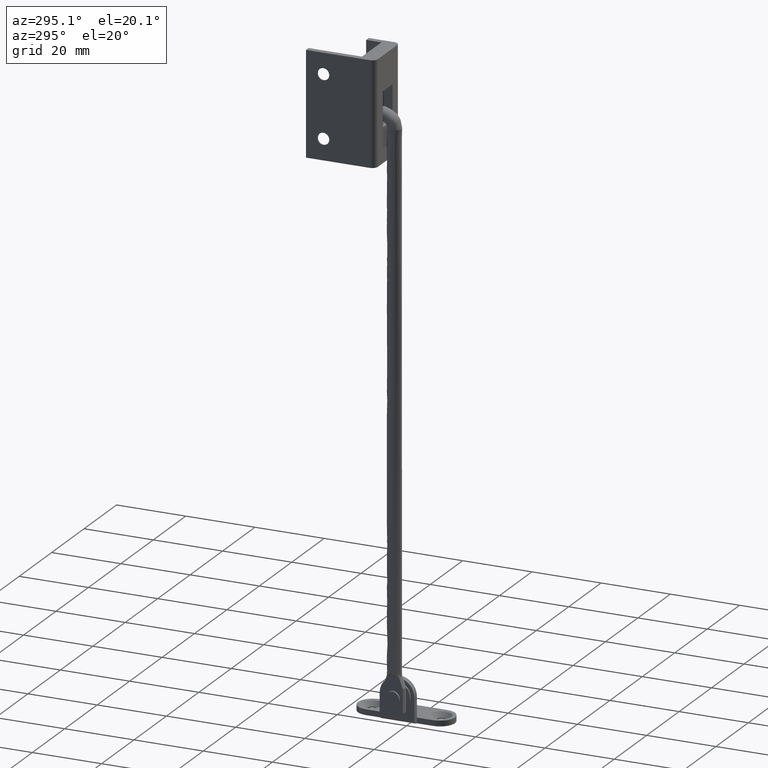
[diagram: clean part render]
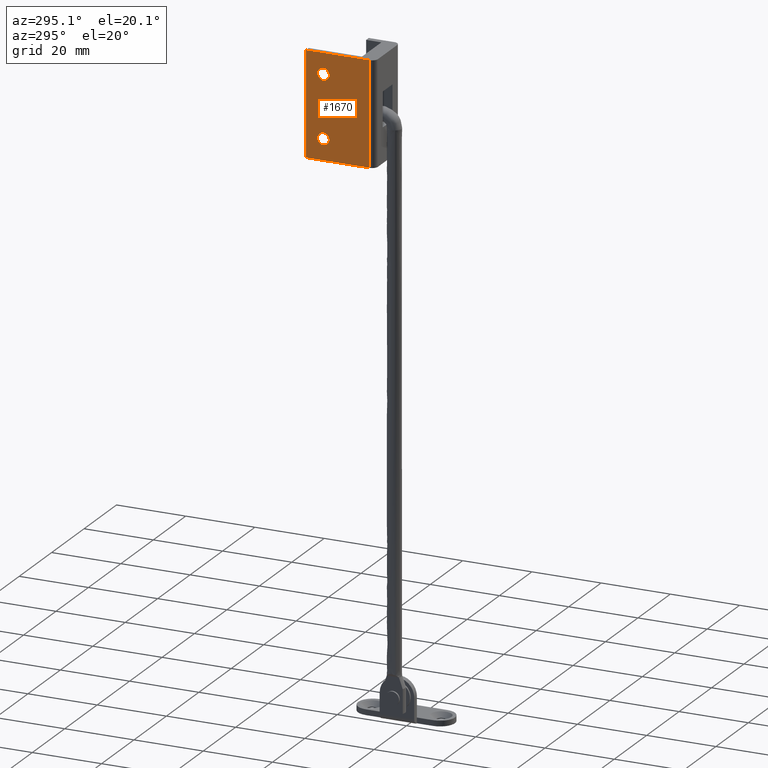
[diagram: same view with one face highlighted and labeled with its STEP entity id]
A machine part, auxiliary view. The second image highlights one B-rep face of the part: STEP entity #1670.
In plain terms, the highlighted face is a freeform B-spline surface patch.
Its self-contained STEP definition (entity closure, byte-faithful):
#732=CARTESIAN_POINT('',(-15.0,18.688116194754219,163.130795199455010));
#733=VERTEX_POINT('',#732);
#739=CARTESIAN_POINT('',(-15.0,17.0,161.230137000000010));
#740=VERTEX_POINT('',#739);
#741=CARTESIAN_POINT('',(-15.000000000000002,18.688116194754208,163.130795199455060));
#742=CARTESIAN_POINT('',(-14.999999999999996,18.699999999999999,163.030818003952530));
#743=CARTESIAN_POINT('',(-15.0,18.699999999999999,162.930137000000000));
#744=CARTESIAN_POINT('',(-14.999999999999995,18.699999999999999,161.230137000000010));
#745=CARTESIAN_POINT('',(-15.0,17.0,161.230137000000010));
#753=(BOUNDED_CURVE()B_SPLINE_CURVE(2,(#741,#742,#743,#744,#745),.UNSPECIFIED.,.F.,.U.)B_SPLINE_CURVE_WITH_KNOTS((3,2,3),(0.229562473407815,0.250000000000000,0.500000000000000),.UNSPECIFIED.)CURVE()GEOMETRIC_REPRESENTATION_ITEM()RATIONAL_B_SPLINE_CURVE((0.956026753976536,0.976055948207318,1.0,0.707106781186548,1.0))REPRESENTATION_ITEM(''));
#754=EDGE_CURVE('',#733,#740,#753,.T.);
#756=CARTESIAN_POINT('',(-15.0,15.303170842789360,162.826354481049010));
#757=VERTEX_POINT('',#756);
#758=CARTESIAN_POINT('',(-15.0,17.0,161.230137000000010));
#759=CARTESIAN_POINT('',(-15.0,15.400799689549558,161.230136999999930));
#760=CARTESIAN_POINT('',(-14.999999999999996,15.303170842789354,162.826354481048980));
#768=(BOUNDED_CURVE()B_SPLINE_CURVE(2,(#758,#759,#760),.UNSPECIFIED.,.F.,.U.)B_SPLINE_CURVE_WITH_KNOTS((3,3),(0.500000000000000,0.739332961887735),.UNSPECIFIED.)CURVE()GEOMETRIC_REPRESENTATION_ITEM()RATIONAL_B_SPLINE_CURVE((1.0,0.719603993698176,0.976072040914012))REPRESENTATION_ITEM(''));
#769=EDGE_CURVE('',#740,#757,#768,.T.);
#803=CARTESIAN_POINT('',(-15.0,17.0,164.630136999999990));
#804=VERTEX_POINT('',#803);
#805=CARTESIAN_POINT('',(-14.999999999999996,15.303170842789354,162.826354481048980));
#806=CARTESIAN_POINT('',(-14.999999999999995,15.300000000000002,162.878197300645780));
#807=CARTESIAN_POINT('',(-15.0,15.300000000000001,162.930137000000000));
#808=CARTESIAN_POINT('',(-14.999999999999995,15.300000000000004,164.630137000000080));
#809=CARTESIAN_POINT('',(-15.0,17.0,164.630136999999990));
#817=(BOUNDED_CURVE()B_SPLINE_CURVE(2,(#805,#806,#807,#808,#809),.UNSPECIFIED.,.F.,.U.)B_SPLINE_CURVE_WITH_KNOTS((3,2,3),(0.739332961887736,0.750000000000000,1.0),.UNSPECIFIED.)CURVE()GEOMETRIC_REPRESENTATION_ITEM()RATIONAL_B_SPLINE_CURVE((0.976072040914014,0.987502787488372,1.0,0.707106781186548,1.0))REPRESENTATION_ITEM(''));
#818=EDGE_CURVE('',#757,#804,#817,.T.);
#820=CARTESIAN_POINT('',(-15.0,17.0,164.630136999999990));
#821=CARTESIAN_POINT('',(-15.0,18.509896693147180,164.630137000000050));
#822=CARTESIAN_POINT('',(-15.000000000000002,18.688116194754208,163.130795199455060));
#830=(BOUNDED_CURVE()B_SPLINE_CURVE(2,(#820,#821,#822),.UNSPECIFIED.,.F.,.U.)B_SPLINE_CURVE_WITH_KNOTS((3,3),(0.0,0.229562473407815),.UNSPECIFIED.)CURVE()GEOMETRIC_REPRESENTATION_ITEM()RATIONAL_B_SPLINE_CURVE((1.0,0.731050832979230,0.956026753976536))REPRESENTATION_ITEM(''));
#831=EDGE_CURVE('',#804,#733,#830,.T.);
#1076=CARTESIAN_POINT('',(-15.0,18.688116194754219,181.130795199455010));
#1077=VERTEX_POINT('',#1076);
#1083=CARTESIAN_POINT('',(-15.0,17.0,179.230137000000010));
#1084=VERTEX_POINT('',#1083);
#1085=CARTESIAN_POINT('',(-14.999999999999996,18.688116194754215,181.130795199455010));
#1086=CARTESIAN_POINT('',(-14.999999999999996,18.699999999999999,181.030818003952500));
#1087=CARTESIAN_POINT('',(-15.0,18.699999999999999,180.930137000000000));
#1088=CARTESIAN_POINT('',(-14.999999999999995,18.699999999999999,179.230136999999960));
#1089=CARTESIAN_POINT('',(-15.0,17.0,179.230137000000010));
#1097=(BOUNDED_CURVE()B_SPLINE_CURVE(2,(#1085,#1086,#1087,#1088,#1089),.UNSPECIFIED.,.F.,.U.)B_SPLINE_CURVE_WITH_KNOTS((3,2,3),(0.229562473407813,0.250000000000000,0.500000000000000),.UNSPECIFIED.)CURVE()GEOMETRIC_REPRESENTATION_ITEM()RATIONAL_B_SPLINE_CURVE((0.956026753976531,0.976055948207315,1.0,0.707106781186548,1.0))REPRESENTATION_ITEM(''));
#1098=EDGE_CURVE('',#1077,#1084,#1097,.T.);
#1100=CARTESIAN_POINT('',(-15.0,15.303170842789360,180.826354481049010));
#1101=VERTEX_POINT('',#1100);
#1102=CARTESIAN_POINT('',(-15.0,17.0,179.230137000000010));
#1103=CARTESIAN_POINT('',(-15.000000000000002,15.400799689549585,179.230137000000010));
#1104=CARTESIAN_POINT('',(-15.0,15.303170842789360,180.826354481048950));
#1112=(BOUNDED_CURVE()B_SPLINE_CURVE(2,(#1102,#1103,#1104),.UNSPECIFIED.,.F.,.U.)B_SPLINE_CURVE_WITH_KNOTS((3,3),(0.500000000000000,0.739332961887733),.UNSPECIFIED.)CURVE()GEOMETRIC_REPRESENTATION_ITEM()RATIONAL_B_SPLINE_CURVE((1.0,0.719603993698179,0.976072040914007))REPRESENTATION_ITEM(''));
#1113=EDGE_CURVE('',#1084,#1101,#1112,.T.);
#1147=CARTESIAN_POINT('',(-15.0,17.0,182.630136999999990));
#1148=VERTEX_POINT('',#1147);
#1149=CARTESIAN_POINT('',(-14.999999999999996,15.303170842789356,180.826354481048950));
#1150=CARTESIAN_POINT('',(-14.999999999999998,15.299999999999995,180.878197300645780));
#1151=CARTESIAN_POINT('',(-15.0,15.300000000000001,180.930137000000000));
#1152=CARTESIAN_POINT('',(-14.999999999999995,15.300000000000004,182.630136999999990));
#1153=CARTESIAN_POINT('',(-15.0,17.0,182.630136999999990));
#1161=(BOUNDED_CURVE()B_SPLINE_CURVE(2,(#1149,#1150,#1151,#1152,#1153),.UNSPECIFIED.,.F.,.U.)B_SPLINE_CURVE_WITH_KNOTS((3,2,3),(0.739332961887734,0.750000000000000,1.0),.UNSPECIFIED.)CURVE()GEOMETRIC_REPRESENTATION_ITEM()RATIONAL_B_SPLINE_CURVE((0.976072040914010,0.987502787488370,1.0,0.707106781186548,1.0))REPRESENTATION_ITEM(''));
#1162=EDGE_CURVE('',#1101,#1148,#1161,.T.);
#1164=CARTESIAN_POINT('',(-15.0,17.0,182.630136999999990));
#1165=CARTESIAN_POINT('',(-15.000000000000004,18.509896693147169,182.630137000000080));
#1166=CARTESIAN_POINT('',(-14.999999999999995,18.688116194754219,181.130795199455010));
#1174=(BOUNDED_CURVE()B_SPLINE_CURVE(2,(#1164,#1165,#1166),.UNSPECIFIED.,.F.,.U.)B_SPLINE_CURVE_WITH_KNOTS((3,3),(0.0,0.229562473407813),.UNSPECIFIED.)CURVE()GEOMETRIC_REPRESENTATION_ITEM()RATIONAL_B_SPLINE_CURVE((1.0,0.731050832979233,0.956026753976532))REPRESENTATION_ITEM(''));
#1175=EDGE_CURVE('',#1148,#1077,#1174,.T.);
#1197=CARTESIAN_POINT('',(-15.0,3.600000000000000,156.930137000000000));
#1198=VERTEX_POINT('',#1197);
#1219=CARTESIAN_POINT('',(-15.0,3.600000000000000,186.930137000000000));
#1220=VERTEX_POINT('',#1219);
#1234=CARTESIAN_POINT('',(-15.0,3.600000000000000,156.930137000000000));
#1235=CARTESIAN_POINT('',(-15.0,3.600000000000000,186.930137000000000));
#1236=QUASI_UNIFORM_CURVE('',1,(#1234,#1235),.UNSPECIFIED.,.F.,.U.);
#1237=EDGE_CURVE('',#1198,#1220,#1236,.T.);
#1461=CARTESIAN_POINT('',(-15.0,22.0,186.930137000000000));
#1462=VERTEX_POINT('',#1461);
#1468=CARTESIAN_POINT('',(-15.0,3.600000000000000,186.930137000000000));
#1469=CARTESIAN_POINT('',(-15.0,22.0,186.930137000000000));
#1470=QUASI_UNIFORM_CURVE('',1,(#1468,#1469),.UNSPECIFIED.,.F.,.U.);
#1471=EDGE_CURVE('',#1220,#1462,#1470,.T.);
#1496=CARTESIAN_POINT('',(-15.0,22.0,156.930137000000000));
#1497=VERTEX_POINT('',#1496);
#1498=CARTESIAN_POINT('',(-15.0,3.600000000000000,156.930137000000000));
#1499=CARTESIAN_POINT('',(-15.0,22.0,156.930137000000000));
#1500=QUASI_UNIFORM_CURVE('',1,(#1498,#1499),.UNSPECIFIED.,.F.,.U.);
#1501=EDGE_CURVE('',#1198,#1497,#1500,.T.);
#1599=CARTESIAN_POINT('',(-15.0,22.0,156.930137000000000));
#1600=CARTESIAN_POINT('',(-15.0,22.0,186.930137000000000));
#1601=QUASI_UNIFORM_CURVE('',1,(#1599,#1600),.UNSPECIFIED.,.F.,.U.);
#1602=EDGE_CURVE('',#1497,#1462,#1601,.T.);
#1647=CARTESIAN_POINT('',(-15.0,2.680919862936733,155.431630164788200));
#1648=CARTESIAN_POINT('',(-15.0,22.919080466080910,155.431630164788200));
#1649=CARTESIAN_POINT('',(-15.0,2.680919862936733,188.428629083062300));
#1650=CARTESIAN_POINT('',(-15.0,22.919080466080910,188.428629083062300));
#1651=B_SPLINE_SURFACE_WITH_KNOTS('',1,1,((#1647,#1649),(#1648,#1650)),.UNSPECIFIED.,.F.,.F.,.U.,(2,2),(2,2),(0.0,20.238160603144181),(0.0,32.996998918274073),.UNSPECIFIED.);
#1652=ORIENTED_EDGE('',*,*,#1501,.F.);
#1653=ORIENTED_EDGE('',*,*,#1237,.T.);
#1654=ORIENTED_EDGE('',*,*,#1471,.T.);
#1655=ORIENTED_EDGE('',*,*,#1602,.F.);
#1656=EDGE_LOOP('',(#1652,#1653,#1654,#1655));
#1657=FACE_OUTER_BOUND('',#1656,.T.);
#1658=ORIENTED_EDGE('',*,*,#1113,.F.);
#1659=ORIENTED_EDGE('',*,*,#1098,.F.);
#1660=ORIENTED_EDGE('',*,*,#1175,.F.);
#1661=ORIENTED_EDGE('',*,*,#1162,.F.);
#1662=EDGE_LOOP('',(#1658,#1659,#1660,#1661));
#1663=FACE_BOUND('',#1662,.T.);
#1664=ORIENTED_EDGE('',*,*,#769,.F.);
#1665=ORIENTED_EDGE('',*,*,#754,.F.);
#1666=ORIENTED_EDGE('',*,*,#831,.F.);
#1667=ORIENTED_EDGE('',*,*,#818,.F.);
#1668=EDGE_LOOP('',(#1664,#1665,#1666,#1667));
#1669=FACE_BOUND('',#1668,.T.);
#1670=ADVANCED_FACE('',(#1657,#1663,#1669),#1651,.F.);